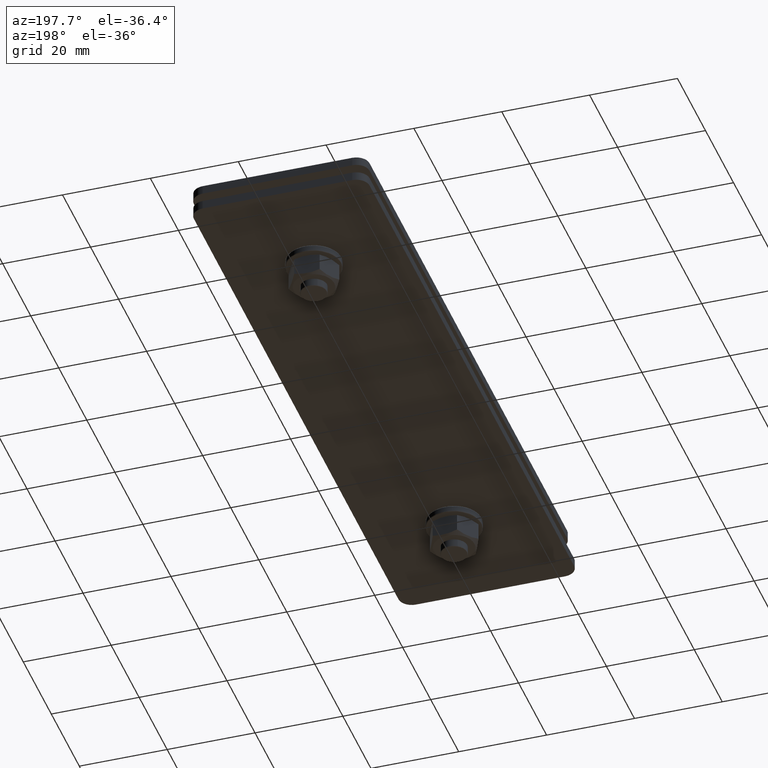
[diagram: clean part render]
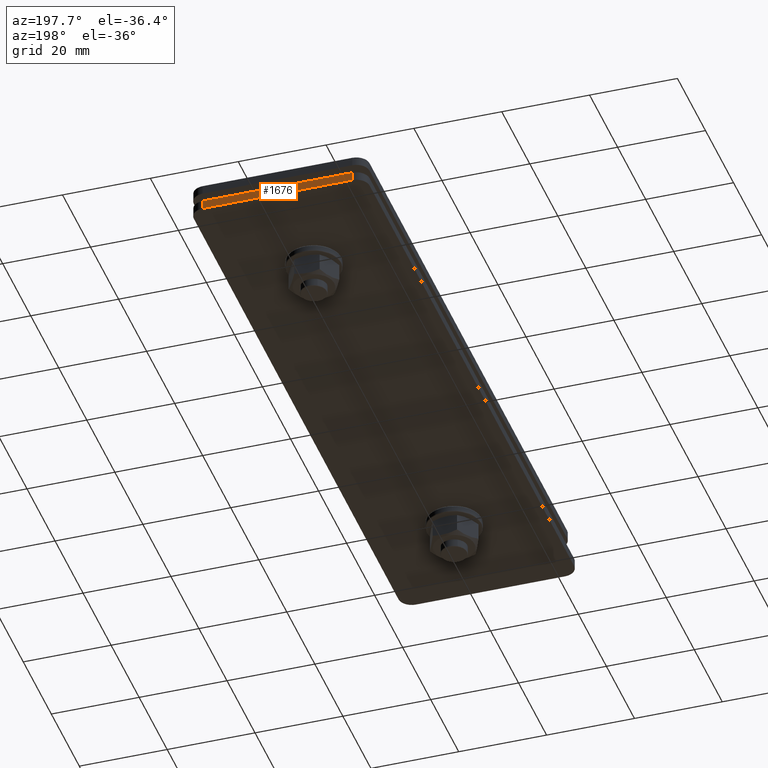
[diagram: same view with one face highlighted and labeled with its STEP entity id]
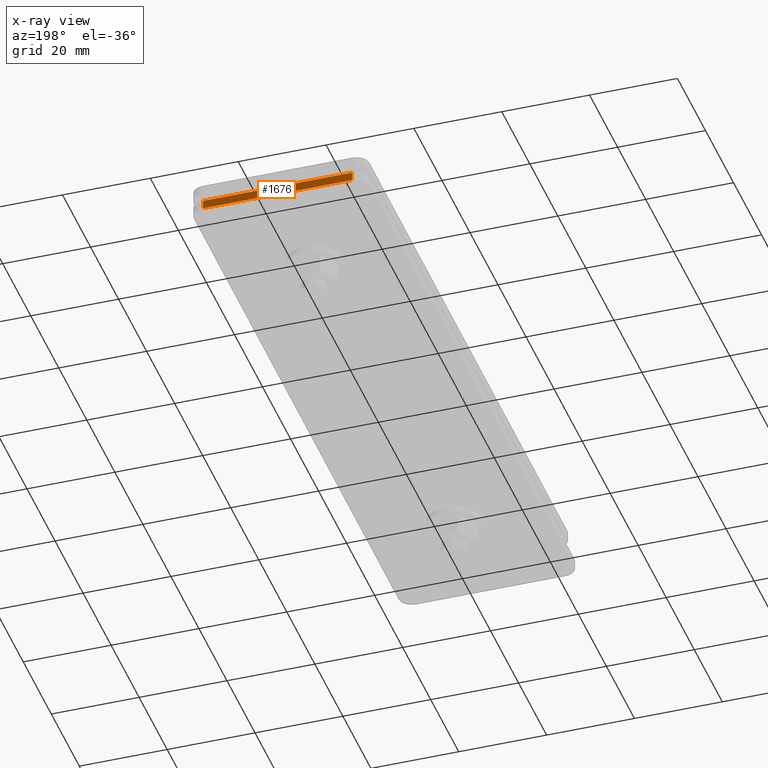
[diagram: x-ray of the same camera — body ghosted, the highlighted face saturated]
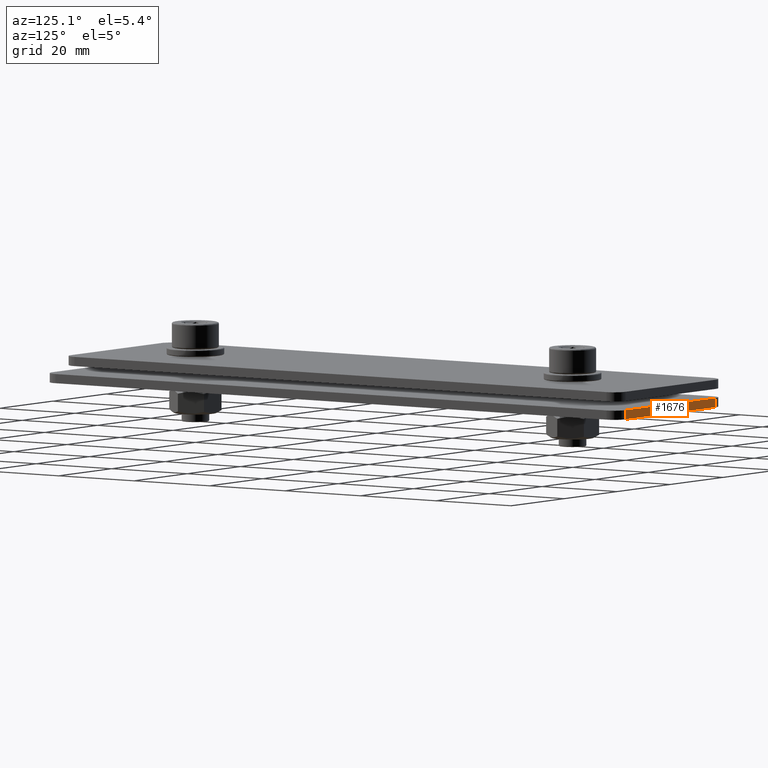
[diagram: same view with one face highlighted and labeled with its STEP entity id]
A machine part, auxiliary view. The second image highlights one B-rep face of the part: STEP entity #1676.
The next image is the same camera in x-ray: the body ghosted, the highlighted face saturated — about 0% of this face is hidden behind the body in this view.
A second angle (auxiliary view) of the same face is appended — the face is thin or edge-on in the first view.
In plain terms, the highlighted planar face has unit normal (0, 1, 0).
Its self-contained STEP definition (entity closure, byte-faithful):
#33 = VERTEX_POINT ( 'NONE', #2347 ) ;
#182 = VECTOR ( 'NONE', #2612, 1000.000000000000000 ) ;
#191 = CARTESIAN_POINT ( 'NONE',  ( 0.000000000000000000, 152.0000000000000000, 0.000000000000000000 ) ) ;
#362 = VERTEX_POINT ( 'NONE', #1530 ) ;
#398 = CARTESIAN_POINT ( 'NONE',  ( 0.000000000000000000, 152.0000000000000000, -2.000000000000001776 ) ) ;
#423 = VERTEX_POINT ( 'NONE', #1183 ) ;
#425 = DIRECTION ( 'NONE',  ( 1.000000000000000000, -0.000000000000000000, -5.551115123125782702E-17 ) ) ;
#592 = CARTESIAN_POINT ( 'NONE',  ( -37.00000000000000000, 152.0000000000000000, -2.000000000000001776 ) ) ;
#773 = FACE_OUTER_BOUND ( 'NONE', #810, .T. ) ;
#810 = EDGE_LOOP ( 'NONE', ( #1581, #2652, #940, #2177 ) ) ;
#824 = EDGE_CURVE ( 'NONE', #33, #1933, #2022, .T. ) ;
#940 = ORIENTED_EDGE ( 'NONE', *, *, #824, .F. ) ;
#1183 = CARTESIAN_POINT ( 'NONE',  ( -37.00000000000000000, 152.0000000000000000, 0.000000000000000000 ) ) ;
#1257 = CARTESIAN_POINT ( 'NONE',  ( -3.000000000000002665, 152.0000000000000000, -2.000000000000001776 ) ) ;
#1530 = CARTESIAN_POINT ( 'NONE',  ( -3.000000000000002665, 152.0000000000000000, 0.000000000000000000 ) ) ;
#1581 = ORIENTED_EDGE ( 'NONE', *, *, #2412, .T. ) ;
#1644 = PLANE ( 'NONE',  #2271 ) ;
#1676 = ADVANCED_FACE ( 'NONE', ( #773 ), #1644, .T. ) ;
#1719 = VECTOR ( 'NONE', #3200, 1000.000000000000000 ) ;
#1803 = LINE ( 'NONE', #1257, #2155 ) ;
#1855 = EDGE_CURVE ( 'NONE', #1933, #362, #1803, .T. ) ;
#1933 = VERTEX_POINT ( 'NONE', #2430 ) ;
#2022 = LINE ( 'NONE', #2560, #1719 ) ;
#2155 = VECTOR ( 'NONE', #2449, 1000.000000000000000 ) ;
#2177 = ORIENTED_EDGE ( 'NONE', *, *, #3306, .T. ) ;
#2192 = LINE ( 'NONE', #191, #2707 ) ;
#2271 = AXIS2_PLACEMENT_3D ( 'NONE', #398, #3361, #3685 ) ;
#2288 = LINE ( 'NONE', #592, #182 ) ;
#2347 = CARTESIAN_POINT ( 'NONE',  ( -37.00000000000000000, 152.0000000000000000, -2.000000000000001776 ) ) ;
#2412 = EDGE_CURVE ( 'NONE', #423, #362, #2192, .T. ) ;
#2430 = CARTESIAN_POINT ( 'NONE',  ( -3.000000000000002665, 152.0000000000000000, -2.000000000000001776 ) ) ;
#2449 = DIRECTION ( 'NONE',  ( 5.551115123125782702E-17, 0.000000000000000000, 1.000000000000000000 ) ) ;
#2560 = CARTESIAN_POINT ( 'NONE',  ( 0.000000000000000000, 152.0000000000000000, -2.000000000000001776 ) ) ;
#2612 = DIRECTION ( 'NONE',  ( 5.551115123125782702E-17, -0.000000000000000000, 1.000000000000000000 ) ) ;
#2652 = ORIENTED_EDGE ( 'NONE', *, *, #1855, .F. ) ;
#2707 = VECTOR ( 'NONE', #425, 1000.000000000000000 ) ;
#3200 = DIRECTION ( 'NONE',  ( 1.000000000000000000, -0.000000000000000000, -5.551115123125782702E-17 ) ) ;
#3306 = EDGE_CURVE ( 'NONE', #33, #423, #2288, .T. ) ;
#3361 = DIRECTION ( 'NONE',  ( 0.000000000000000000, 1.000000000000000000, 0.000000000000000000 ) ) ;
#3685 = DIRECTION ( 'NONE',  ( -5.551115123125782702E-17, 0.000000000000000000, -1.000000000000000000 ) ) ;